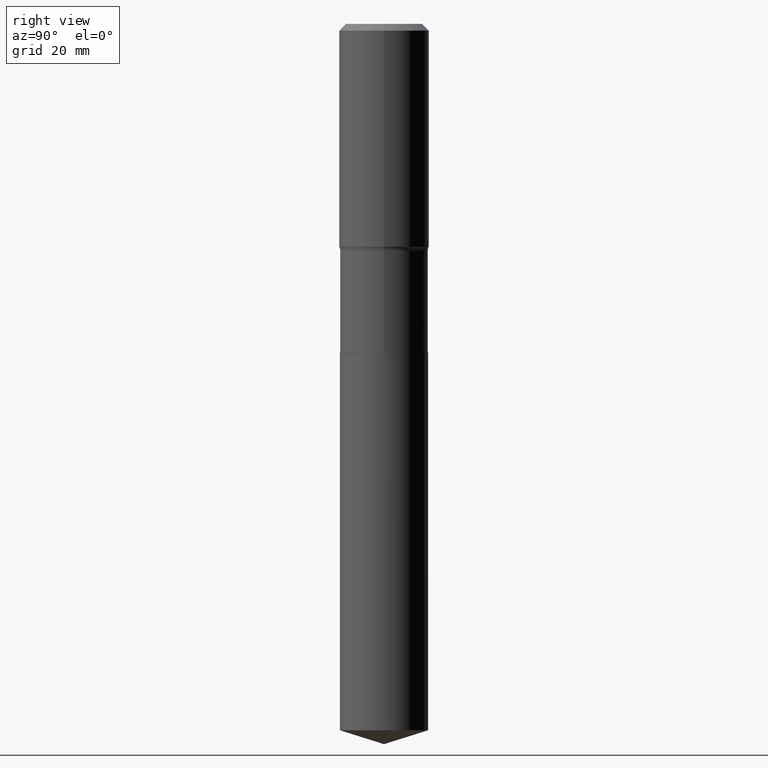
[diagram: clean part render]
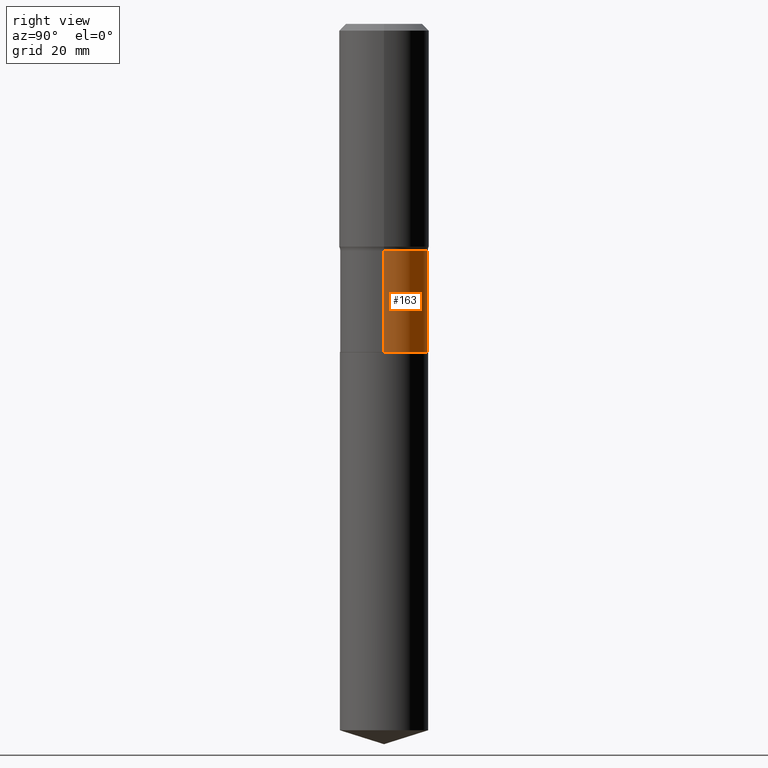
[diagram: same view with one face highlighted and labeled with its STEP entity id]
A machine part, right view. The second image highlights one B-rep face of the part: STEP entity #163.
In plain terms, the highlighted cylindrical surface (partial cylindrical patch) has radius 9.3269 mm, axis along (-0, 0, 1).
Its self-contained STEP definition (entity closure, byte-faithful):
#7 = EDGE_CURVE ( 'NONE', #394, #337, #16, .T. ) ;
#16 = LINE ( 'NONE', #282, #39 ) ;
#28 = CARTESIAN_POINT ( 'NONE',  ( 0.000000000000000000, 0.000000000000000000, 0.000000000000000000 ) ) ;
#32 = FACE_OUTER_BOUND ( 'NONE', #157, .T. ) ;
#39 = VECTOR ( 'NONE', #361, 39.37007874015748143 ) ;
#82 = EDGE_CURVE ( 'NONE', #396, #383, #276, .T. ) ;
#120 = CARTESIAN_POINT ( 'NONE',  ( 0.3671999999999999709, -9.162345329392175895E-15, -1.889800000000000590 ) ) ;
#127 = CARTESIAN_POINT ( 'NONE',  ( 0.3671999999999999709, -2.564143895246397133E-15, 1.790532112072267385E-29 ) ) ;
#149 = CARTESIAN_POINT ( 'NONE',  ( -0.3672000000000000264, -5.462668207493439047E-15, -2.733900000000000219 ) ) ;
#150 = ORIENTED_EDGE ( 'NONE', *, *, #332, .T. ) ;
#157 = EDGE_LOOP ( 'NONE', ( #150, #267, #162, #413 ) ) ;
#162 = ORIENTED_EDGE ( 'NONE', *, *, #277, .F. ) ;
#163 = ADVANCED_FACE ( 'NONE', ( #32 ), #287, .T. ) ;
#185 = AXIS2_PLACEMENT_3D ( 'NONE', #259, #488, #194 ) ;
#194 = DIRECTION ( 'NONE',  ( 1.000000000000000000, -6.982962677686265922E-15, 0.000000000000000000 ) ) ;
#230 = CIRCLE ( 'NONE', #185, 0.3671999999999999709 ) ;
#233 = AXIS2_PLACEMENT_3D ( 'NONE', #28, #435, #250 ) ;
#250 = DIRECTION ( 'NONE',  ( 1.000000000000000000, -6.982962677686267499E-15, 4.876176775795935793E-29 ) ) ;
#259 = CARTESIAN_POINT ( 'NONE',  ( 4.621446949928673110E-29, -6.598201434145779157E-15, -1.889800000000000590 ) ) ;
#263 = VECTOR ( 'NONE', #471, 39.37007874015748143 ) ;
#267 = ORIENTED_EDGE ( 'NONE', *, *, #7, .T. ) ;
#276 = LINE ( 'NONE', #127, #263 ) ;
#277 = EDGE_CURVE ( 'NONE', #383, #337, #230, .T. ) ;
#278 = AXIS2_PLACEMENT_3D ( 'NONE', #296, #303, #458 ) ;
#282 = CARTESIAN_POINT ( 'NONE',  ( -0.3671999999999999709, 2.609112925711087676E-15, -1.806232965141601217E-29 ) ) ;
#287 = CYLINDRICAL_SURFACE ( 'NONE', #233, 0.3671999999999999709 ) ;
#296 = CARTESIAN_POINT ( 'NONE',  ( 6.685667169229545057E-29, -9.545360832263276655E-15, -2.733900000000000219 ) ) ;
#303 = DIRECTION ( 'NONE',  ( -2.445468806185136597E-29, 3.491481338843145583E-15, 1.000000000000000000 ) ) ;
#330 = CIRCLE ( 'NONE', #278, 0.3672000000000000264 ) ;
#332 = EDGE_CURVE ( 'NONE', #396, #394, #330, .T. ) ;
#337 = VERTEX_POINT ( 'NONE', #382 ) ;
#361 = DIRECTION ( 'NONE',  ( -2.445468806185136877E-29, 3.491481338843145188E-15, 1.000000000000000000 ) ) ;
#382 = CARTESIAN_POINT ( 'NONE',  ( -0.3671999999999999709, -5.462668207493439836E-15, -1.889800000000000590 ) ) ;
#383 = VERTEX_POINT ( 'NONE', #120 ) ;
#394 = VERTEX_POINT ( 'NONE', #149 ) ;
#396 = VERTEX_POINT ( 'NONE', #418 ) ;
#413 = ORIENTED_EDGE ( 'NONE', *, *, #82, .F. ) ;
#418 = CARTESIAN_POINT ( 'NONE',  ( 0.3672000000000000264, -1.210950472750967261E-14, -2.733900000000000219 ) ) ;
#435 = DIRECTION ( 'NONE',  ( -2.445468806185136597E-29, 3.491481338843145583E-15, 1.000000000000000000 ) ) ;
#458 = DIRECTION ( 'NONE',  ( 1.000000000000000000, -6.982962677686265133E-15, 0.000000000000000000 ) ) ;
#471 = DIRECTION ( 'NONE',  ( -2.445468806185136877E-29, 3.491481338843145188E-15, 1.000000000000000000 ) ) ;
#488 = DIRECTION ( 'NONE',  ( -2.445468806185136597E-29, 3.491481338843145583E-15, 1.000000000000000000 ) ) ;